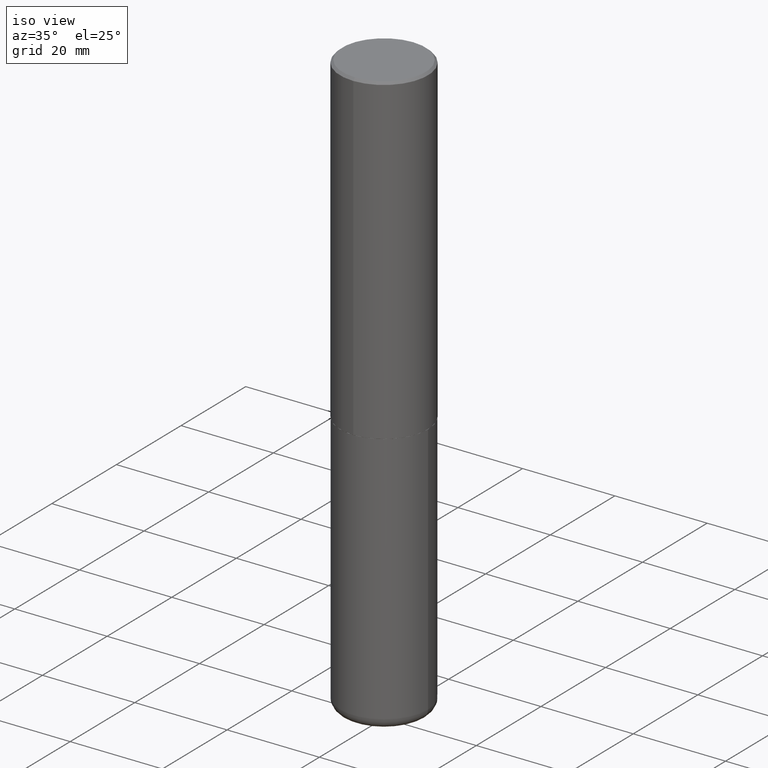
[diagram: clean part render]
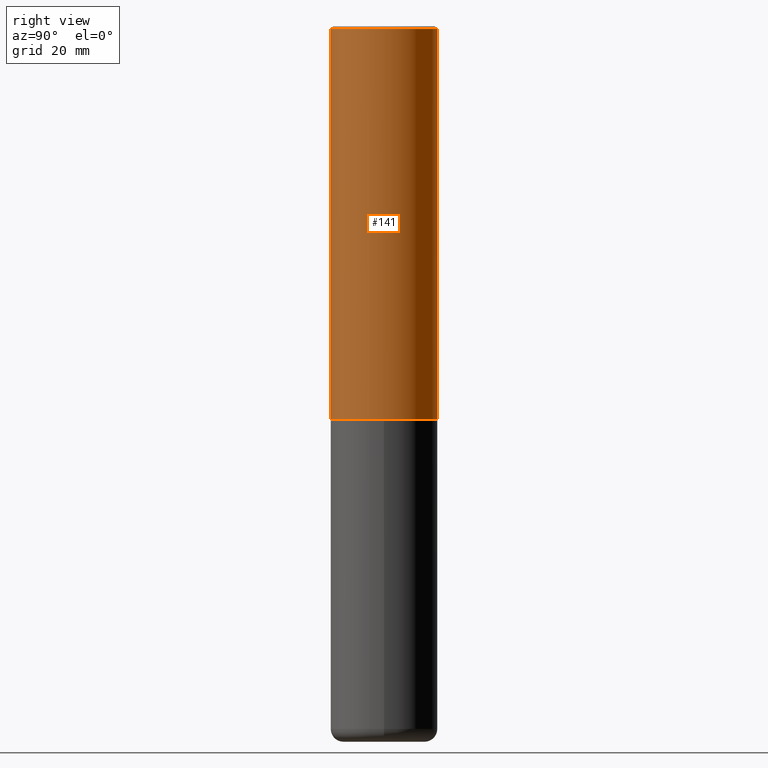
[diagram: tour spotlight — one face highlighted and labeled with its STEP entity id]
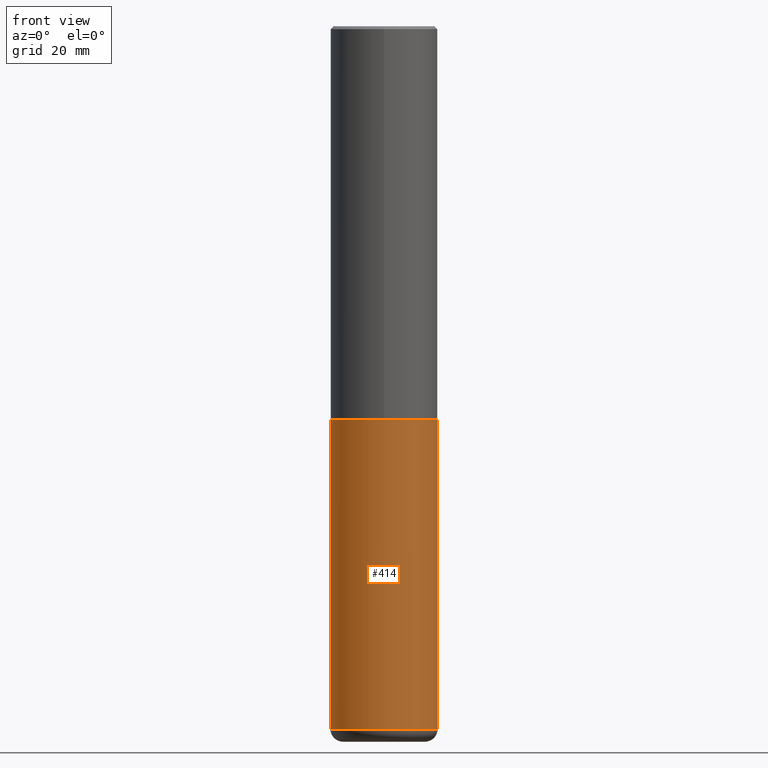
[diagram: tour spotlight — one face highlighted and labeled with its STEP entity id]
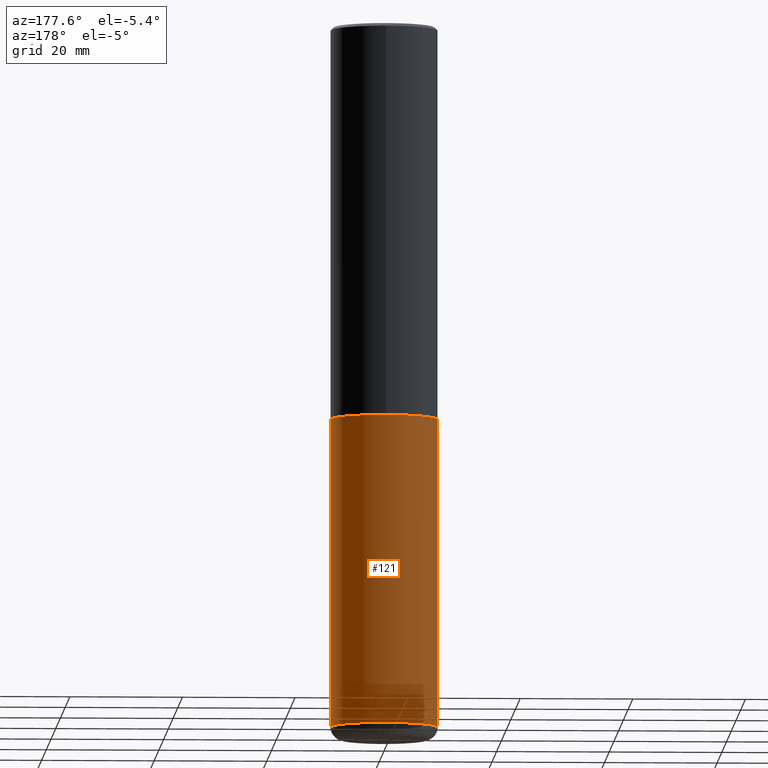
[diagram: tour spotlight — one face highlighted and labeled with its STEP entity id]
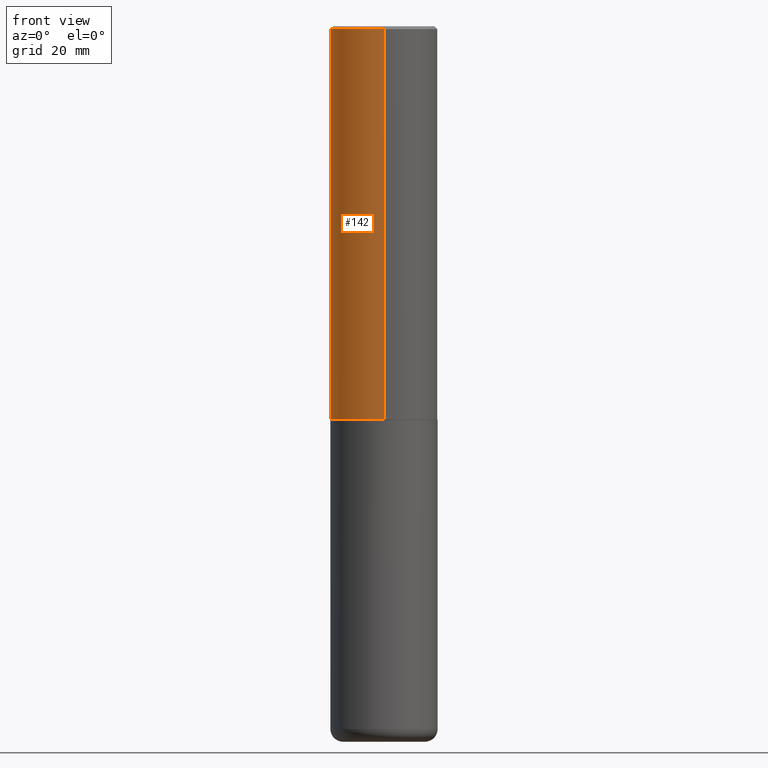
[diagram: tour spotlight — one face highlighted and labeled with its STEP entity id]
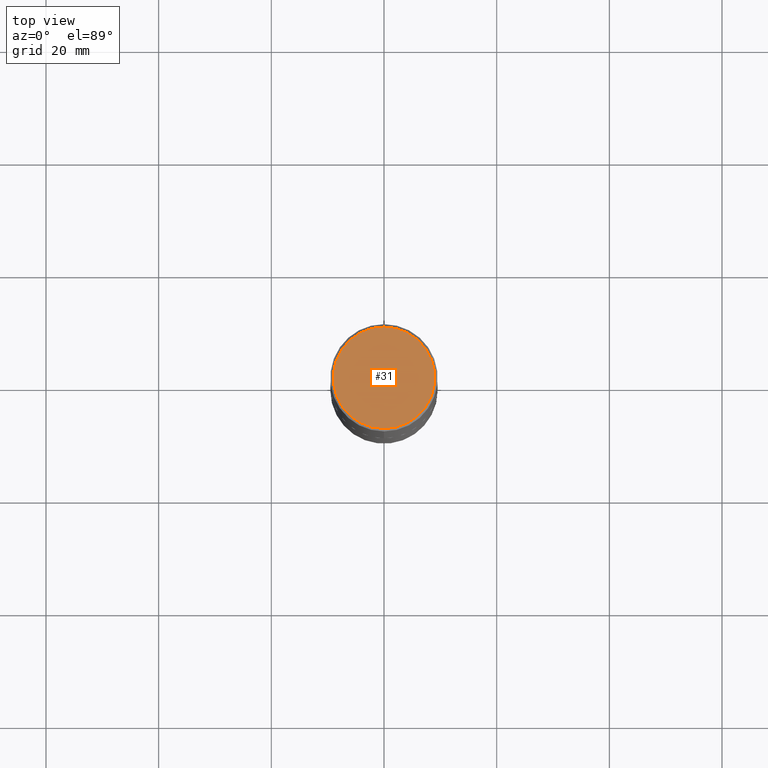
[diagram: tour spotlight — one face highlighted and labeled with its STEP entity id]
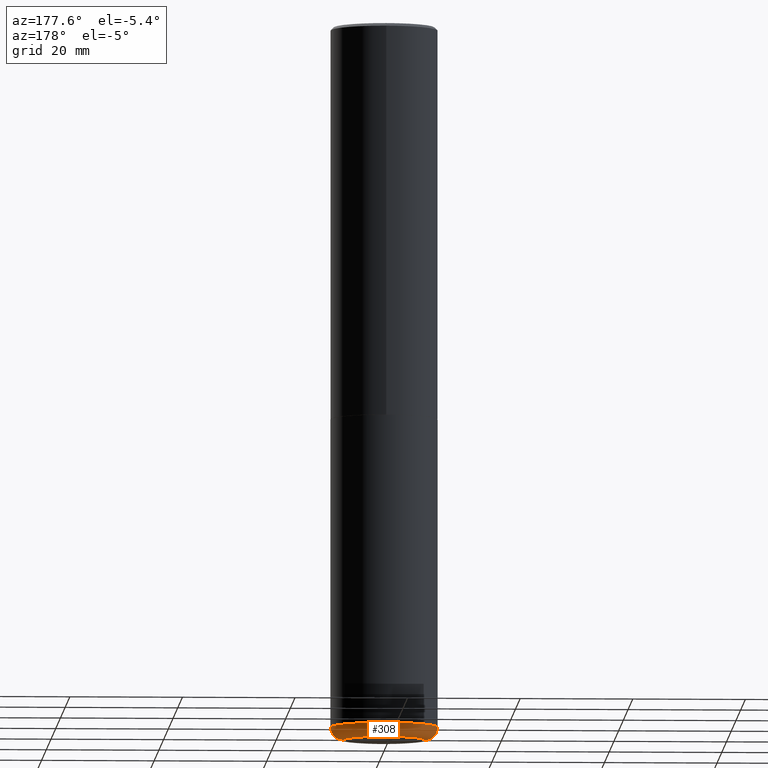
[diagram: tour spotlight — one face highlighted and labeled with its STEP entity id]
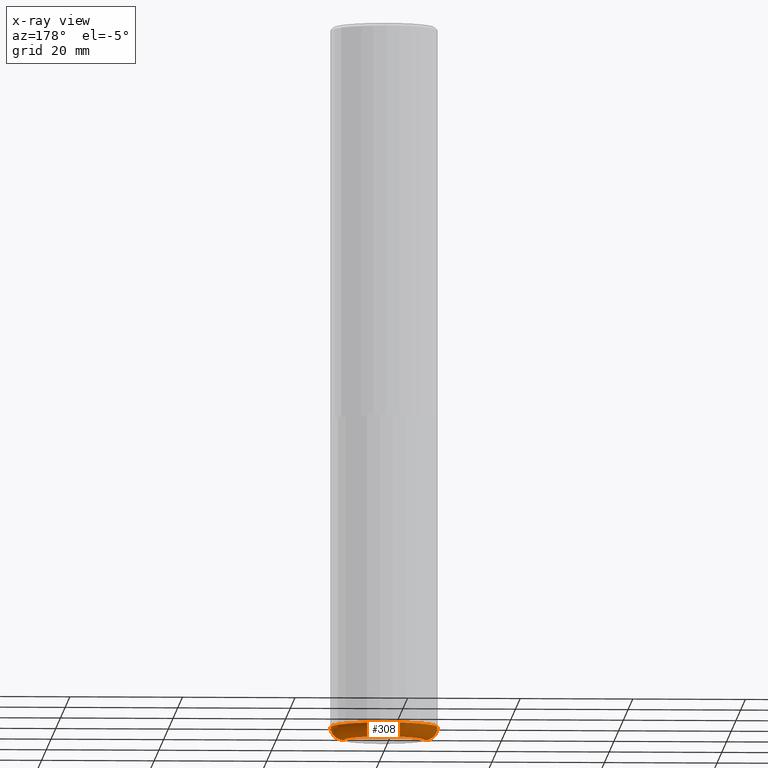
[diagram: x-ray of the same camera — body ghosted, this tour face saturated]
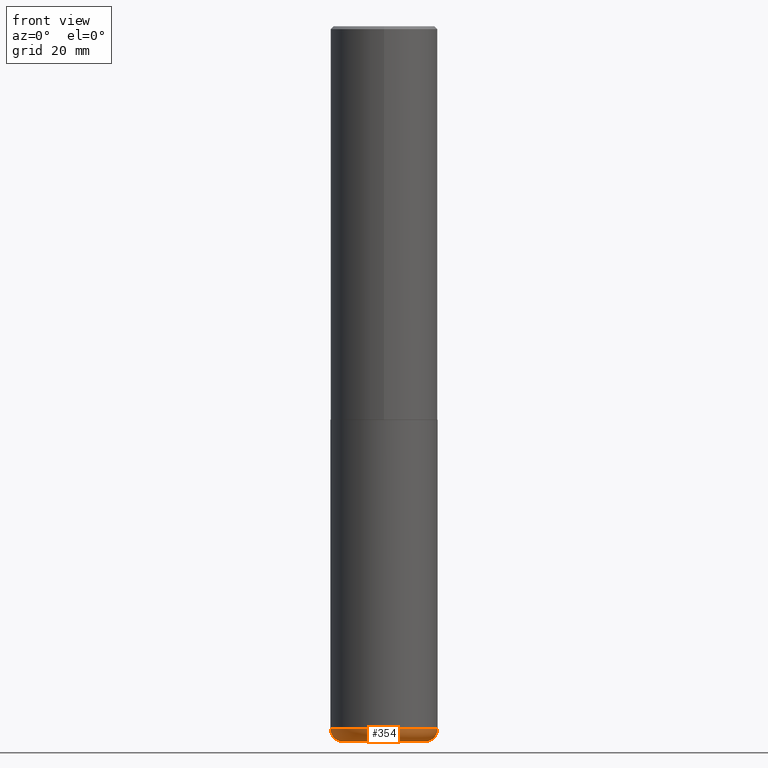
[diagram: tour spotlight — one face highlighted and labeled with its STEP entity id]
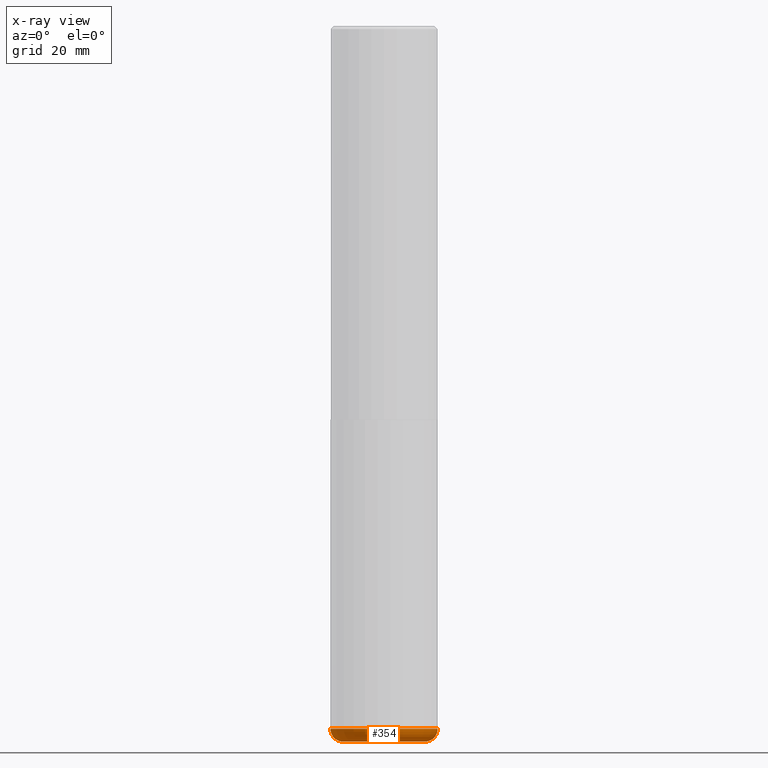
[diagram: x-ray of the same camera — body ghosted, this tour face saturated]
A machine part: a face-by-face anatomy tour. The part has 14 B-rep faces; the first image is the clean iso view, then the 7 largest visible faces are spotlighted one at a time (largest first), each with its STEP entity span.

Face 1 — right view, entity #141. In plain terms, the highlighted cylindrical surface (partial cylindrical patch) has radius 9.525 mm, axis along (-0, 0, 1).
Definition (entity closure, byte-faithful):
#2 = CARTESIAN_POINT ( 'NONE',  ( -2.618611004132351594E-15, -0.3750000000000002220, 1.308998548422625521E-15 ) ) ;
#57 = CARTESIAN_POINT ( 'NONE',  ( 0.000000000000000000, 0.000000000000000000, 0.000000000000000000 ) ) ;
#65 = DIRECTION ( 'NONE',  ( -6.982962677686265922E-15, -1.000000000000000000, 3.494488891895536035E-15 ) ) ;
#66 = AXIS2_PLACEMENT_3D ( 'NONE', #405, #412, #65 ) ;
#68 = CYLINDRICAL_SURFACE ( 'NONE', #416, 0.3750000000000002220 ) ;
#76 = EDGE_CURVE ( 'NONE', #403, #271, #93, .T. ) ;
#86 = EDGE_CURVE ( 'NONE', #214, #271, #312, .T. ) ;
#89 = CARTESIAN_POINT ( 'NONE',  ( 2.664535259100376880E-15, 0.3750000000000002220, -1.308998548422625521E-15 ) ) ;
#93 = CIRCLE ( 'NONE', #66, 0.3750000000000000555 ) ;
#141 = ADVANCED_FACE ( 'NONE', ( #352 ), #68, .T. ) ;
#148 = DIRECTION ( 'NONE',  ( -2.446040391741596606E-29, 3.490662795793665557E-15, 1.000000000000000000 ) ) ;
#150 = ORIENTED_EDGE ( 'NONE', *, *, #310, .F. ) ;
#176 = LINE ( 'NONE', #2, #387 ) ;
#180 = VERTEX_POINT ( 'NONE', #384 ) ;
#192 = DIRECTION ( 'NONE',  ( -2.446040391741596606E-29, 3.490662795793665557E-15, 1.000000000000000000 ) ) ;
#202 = DIRECTION ( 'NONE',  ( -6.982962677686265922E-15, -1.000000000000000000, 2.913971193241877611E-15 ) ) ;
#203 = DIRECTION ( 'NONE',  ( -2.446040391741596606E-29, 3.490662795793665557E-15, 1.000000000000000000 ) ) ;
#214 = VERTEX_POINT ( 'NONE', #292 ) ;
#236 = EDGE_CURVE ( 'NONE', #180, #214, #393, .T. ) ;
#244 = ORIENTED_EDGE ( 'NONE', *, *, #86, .T. ) ;
#259 = CARTESIAN_POINT ( 'NONE',  ( 6.724165036897648492E-29, -9.595832025636787455E-15, -2.749000000000000110 ) ) ;
#271 = VERTEX_POINT ( 'NONE', #385 ) ;
#292 = CARTESIAN_POINT ( 'NONE',  ( 2.664535259100411196E-15, 0.3749999999999907296, -2.749000000000000998 ) ) ;
#294 = AXIS2_PLACEMENT_3D ( 'NONE', #259, #203, #202 ) ;
#309 = DIRECTION ( 'NONE',  ( -6.982962677686266711E-15, -1.000000000000000000, 3.490662795793665951E-15 ) ) ;
#310 = EDGE_CURVE ( 'NONE', #180, #403, #176, .T. ) ;
#312 = LINE ( 'NONE', #89, #317 ) ;
#317 = VECTOR ( 'NONE', #343, 39.37007874015748143 ) ;
#334 = EDGE_LOOP ( 'NONE', ( #391, #244, #336, #150 ) ) ;
#336 = ORIENTED_EDGE ( 'NONE', *, *, #76, .F. ) ;
#343 = DIRECTION ( 'NONE',  ( -2.446040391741596606E-29, 3.490662795793665557E-15, 1.000000000000000000 ) ) ;
#352 = FACE_OUTER_BOUND ( 'NONE', #334, .T. ) ;
#384 = CARTESIAN_POINT ( 'NONE',  ( -2.618611004132284935E-15, -0.3750000000000099920, -2.748999999999999222 ) ) ;
#385 = CARTESIAN_POINT ( 'NONE',  ( 2.618611004132350411E-15, 0.3749999999999999445, -0.02000000000000139513 ) ) ;
#387 = VECTOR ( 'NONE', #148, 39.37007874015748143 ) ;
#389 = CARTESIAN_POINT ( 'NONE',  ( -2.572686749164323547E-15, -0.3750000000000001110, -0.01999999999999877570 ) ) ;
#391 = ORIENTED_EDGE ( 'NONE', *, *, #236, .T. ) ;
#393 = CIRCLE ( 'NONE', #294, 0.3750000000000003886 ) ;
#403 = VERTEX_POINT ( 'NONE', #389 ) ;
#405 = CARTESIAN_POINT ( 'NONE',  ( 4.892080783483214581E-31, -6.981325591587361238E-17, -0.02000000000000008715 ) ) ;
#412 = DIRECTION ( 'NONE',  ( -2.446040391741596606E-29, 3.490662795793665557E-15, 1.000000000000000000 ) ) ;
#416 = AXIS2_PLACEMENT_3D ( 'NONE', #57, #192, #309 ) ;

Face 2 — front view, entity #414. In plain terms, the highlighted cylindrical surface (partial cylindrical patch) has radius 9.525 mm, axis along (-0, 0, 1).
Definition (entity closure, byte-faithful):
#9 = CARTESIAN_POINT ( 'NONE',  ( 0.000000000000000000, 0.000000000000000000, 0.000000000000000000 ) ) ;
#17 = VERTEX_POINT ( 'NONE', #281 ) ;
#19 = AXIS2_PLACEMENT_3D ( 'NONE', #9, #208, #390 ) ;
#20 = ORIENTED_EDGE ( 'NONE', *, *, #327, .F. ) ;
#34 = CIRCLE ( 'NONE', #35, 0.3750000000000000555 ) ;
#35 = AXIS2_PLACEMENT_3D ( 'NONE', #135, #377, #129 ) ;
#52 = CIRCLE ( 'NONE', #351, 0.3749999999999999445 ) ;
#60 = EDGE_CURVE ( 'NONE', #84, #17, #193, .T. ) ;
#62 = EDGE_CURVE ( 'NONE', #368, #17, #34, .T. ) ;
#82 = EDGE_LOOP ( 'NONE', ( #20, #163, #340, #158 ) ) ;
#84 = VERTEX_POINT ( 'NONE', #170 ) ;
#103 = DIRECTION ( 'NONE',  ( -2.445468806185136597E-29, 3.491481338843145583E-15, 1.000000000000000000 ) ) ;
#110 = CARTESIAN_POINT ( 'NONE',  ( -0.3749999999999999445, 2.664535259100375303E-15, -1.844600658845589318E-29 ) ) ;
#129 = DIRECTION ( 'NONE',  ( 1.000000000000000000, -6.982962677686266711E-15, 0.000000000000000000 ) ) ;
#135 = CARTESIAN_POINT ( 'NONE',  ( 6.725039217009124520E-29, -9.601573681818649859E-15, -2.750000000000000000 ) ) ;
#151 = LINE ( 'NONE', #110, #160 ) ;
#158 = ORIENTED_EDGE ( 'NONE', *, *, #62, .F. ) ;
#160 = VECTOR ( 'NONE', #361, 39.37007874015748143 ) ;
#163 = ORIENTED_EDGE ( 'NONE', *, *, #279, .T. ) ;
#170 = CARTESIAN_POINT ( 'NONE',  ( 0.3749999999999999445, -1.976178437785219664E-14, -4.910000000000000142 ) ) ;
#193 = LINE ( 'NONE', #199, #392 ) ;
#199 = CARTESIAN_POINT ( 'NONE',  ( 0.3749999999999999445, -2.618611004132349622E-15, 1.828566290923475642E-29 ) ) ;
#208 = DIRECTION ( 'NONE',  ( -2.445468806185136597E-29, 3.491481338843145583E-15, 1.000000000000000000 ) ) ;
#210 = CARTESIAN_POINT ( 'NONE',  ( -0.3750000000000000555, -1.070783826866887333E-14, -2.750000000000000000 ) ) ;
#226 = DIRECTION ( 'NONE',  ( -2.445468806185136877E-29, 3.491481338843145188E-15, 1.000000000000000000 ) ) ;
#257 = DIRECTION ( 'NONE',  ( 1.000000000000000000, -6.982962677686269077E-15, 0.000000000000000000 ) ) ;
#279 = EDGE_CURVE ( 'NONE', #301, #84, #52, .T. ) ;
#281 = CARTESIAN_POINT ( 'NONE',  ( 0.3750000000000000555, -1.222018468595100145E-14, -2.750000000000000000 ) ) ;
#290 = CARTESIAN_POINT ( 'NONE',  ( -0.3749999999999999445, -1.447863811461947092E-14, -4.910000000000000142 ) ) ;
#301 = VERTEX_POINT ( 'NONE', #290 ) ;
#327 = EDGE_CURVE ( 'NONE', #301, #368, #151, .T. ) ;
#331 = FACE_OUTER_BOUND ( 'NONE', #82, .T. ) ;
#333 = CYLINDRICAL_SURFACE ( 'NONE', #19, 0.3749999999999999445 ) ;
#340 = ORIENTED_EDGE ( 'NONE', *, *, #60, .T. ) ;
#351 = AXIS2_PLACEMENT_3D ( 'NONE', #417, #103, #257 ) ;
#361 = DIRECTION ( 'NONE',  ( -2.445468806185136877E-29, 3.491481338843145188E-15, 1.000000000000000000 ) ) ;
#368 = VERTEX_POINT ( 'NONE', #210 ) ;
#377 = DIRECTION ( 'NONE',  ( -2.445468806185136597E-29, 3.491481338843145583E-15, 1.000000000000000000 ) ) ;
#390 = DIRECTION ( 'NONE',  ( 1.000000000000000000, -6.982962677686266711E-15, 4.876176775795935793E-29 ) ) ;
#392 = VECTOR ( 'NONE', #226, 39.37007874015748143 ) ;
#414 = ADVANCED_FACE ( 'NONE', ( #331 ), #333, .T. ) ;
#417 = CARTESIAN_POINT ( 'NONE',  ( 1.200725183836902132E-28, -1.714317337371984662E-14, -4.910000000000000142 ) ) ;

Face 3 — auxiliary view, entity #121. In plain terms, the highlighted cylindrical surface (partial cylindrical patch) has radius 9.525 mm, axis along (-0, 0, 1).
Definition (entity closure, byte-faithful):
#17 = VERTEX_POINT ( 'NONE', #281 ) ;
#29 = CARTESIAN_POINT ( 'NONE',  ( 0.000000000000000000, 0.000000000000000000, 0.000000000000000000 ) ) ;
#32 = DIRECTION ( 'NONE',  ( -2.445468806185136597E-29, 3.491481338843145583E-15, 1.000000000000000000 ) ) ;
#44 = AXIS2_PLACEMENT_3D ( 'NONE', #29, #318, #375 ) ;
#60 = EDGE_CURVE ( 'NONE', #84, #17, #193, .T. ) ;
#64 = DIRECTION ( 'NONE',  ( -2.445468806185136597E-29, 3.491481338843145583E-15, 1.000000000000000000 ) ) ;
#72 = CIRCLE ( 'NONE', #408, 0.3749999999999999445 ) ;
#84 = VERTEX_POINT ( 'NONE', #170 ) ;
#97 = ORIENTED_EDGE ( 'NONE', *, *, #263, .T. ) ;
#110 = CARTESIAN_POINT ( 'NONE',  ( -0.3749999999999999445, 2.664535259100375303E-15, -1.844600658845589318E-29 ) ) ;
#121 = ADVANCED_FACE ( 'NONE', ( #131 ), #219, .T. ) ;
#131 = FACE_OUTER_BOUND ( 'NONE', #304, .T. ) ;
#139 = CIRCLE ( 'NONE', #329, 0.3750000000000000555 ) ;
#151 = LINE ( 'NONE', #110, #160 ) ;
#160 = VECTOR ( 'NONE', #361, 39.37007874015748143 ) ;
#161 = EDGE_CURVE ( 'NONE', #17, #368, #139, .T. ) ;
#170 = CARTESIAN_POINT ( 'NONE',  ( 0.3749999999999999445, -1.976178437785219664E-14, -4.910000000000000142 ) ) ;
#188 = ORIENTED_EDGE ( 'NONE', *, *, #60, .F. ) ;
#193 = LINE ( 'NONE', #199, #392 ) ;
#199 = CARTESIAN_POINT ( 'NONE',  ( 0.3749999999999999445, -2.618611004132349622E-15, 1.828566290923475642E-29 ) ) ;
#210 = CARTESIAN_POINT ( 'NONE',  ( -0.3750000000000000555, -1.070783826866887333E-14, -2.750000000000000000 ) ) ;
#219 = CYLINDRICAL_SURFACE ( 'NONE', #44, 0.3749999999999999445 ) ;
#226 = DIRECTION ( 'NONE',  ( -2.445468806185136877E-29, 3.491481338843145188E-15, 1.000000000000000000 ) ) ;
#246 = ORIENTED_EDGE ( 'NONE', *, *, #161, .F. ) ;
#263 = EDGE_CURVE ( 'NONE', #84, #301, #72, .T. ) ;
#281 = CARTESIAN_POINT ( 'NONE',  ( 0.3750000000000000555, -1.222018468595100145E-14, -2.750000000000000000 ) ) ;
#288 = DIRECTION ( 'NONE',  ( 1.000000000000000000, -6.982962677686269077E-15, 0.000000000000000000 ) ) ;
#290 = CARTESIAN_POINT ( 'NONE',  ( -0.3749999999999999445, -1.447863811461947092E-14, -4.910000000000000142 ) ) ;
#301 = VERTEX_POINT ( 'NONE', #290 ) ;
#304 = EDGE_LOOP ( 'NONE', ( #97, #400, #246, #188 ) ) ;
#314 = DIRECTION ( 'NONE',  ( 1.000000000000000000, -6.982962677686266711E-15, 0.000000000000000000 ) ) ;
#318 = DIRECTION ( 'NONE',  ( -2.445468806185136597E-29, 3.491481338843145583E-15, 1.000000000000000000 ) ) ;
#320 = CARTESIAN_POINT ( 'NONE',  ( 1.200725183836902132E-28, -1.714317337371984662E-14, -4.910000000000000142 ) ) ;
#327 = EDGE_CURVE ( 'NONE', #301, #368, #151, .T. ) ;
#329 = AXIS2_PLACEMENT_3D ( 'NONE', #347, #64, #314 ) ;
#347 = CARTESIAN_POINT ( 'NONE',  ( 6.725039217009124520E-29, -9.601573681818649859E-15, -2.750000000000000000 ) ) ;
#361 = DIRECTION ( 'NONE',  ( -2.445468806185136877E-29, 3.491481338843145188E-15, 1.000000000000000000 ) ) ;
#368 = VERTEX_POINT ( 'NONE', #210 ) ;
#375 = DIRECTION ( 'NONE',  ( 1.000000000000000000, -6.982962677686266711E-15, 4.876176775795935793E-29 ) ) ;
#392 = VECTOR ( 'NONE', #226, 39.37007874015748143 ) ;
#400 = ORIENTED_EDGE ( 'NONE', *, *, #327, .T. ) ;
#408 = AXIS2_PLACEMENT_3D ( 'NONE', #320, #32, #288 ) ;

Face 4 — front view, entity #142. In plain terms, the highlighted cylindrical surface (partial cylindrical patch) has radius 9.525 mm, axis along (-0, 0, 1).
Definition (entity closure, byte-faithful):
#2 = CARTESIAN_POINT ( 'NONE',  ( -2.618611004132351594E-15, -0.3750000000000002220, 1.308998548422625521E-15 ) ) ;
#8 = EDGE_CURVE ( 'NONE', #271, #403, #415, .T. ) ;
#15 = ORIENTED_EDGE ( 'NONE', *, *, #394, .T. ) ;
#26 = CARTESIAN_POINT ( 'NONE',  ( 4.892080783483214581E-31, -6.981325591587361238E-17, -0.02000000000000008715 ) ) ;
#28 = AXIS2_PLACEMENT_3D ( 'NONE', #249, #95, #223 ) ;
#49 = ORIENTED_EDGE ( 'NONE', *, *, #310, .T. ) ;
#55 = EDGE_LOOP ( 'NONE', ( #213, #15, #49, #119 ) ) ;
#58 = CIRCLE ( 'NONE', #330, 0.3750000000000003886 ) ;
#86 = EDGE_CURVE ( 'NONE', #214, #271, #312, .T. ) ;
#89 = CARTESIAN_POINT ( 'NONE',  ( 2.664535259100376880E-15, 0.3750000000000002220, -1.308998548422625521E-15 ) ) ;
#95 = DIRECTION ( 'NONE',  ( -2.446040391741596606E-29, 3.490662795793665557E-15, 1.000000000000000000 ) ) ;
#119 = ORIENTED_EDGE ( 'NONE', *, *, #8, .F. ) ;
#142 = ADVANCED_FACE ( 'NONE', ( #247 ), #283, .T. ) ;
#148 = DIRECTION ( 'NONE',  ( -2.446040391741596606E-29, 3.490662795793665557E-15, 1.000000000000000000 ) ) ;
#176 = LINE ( 'NONE', #2, #387 ) ;
#180 = VERTEX_POINT ( 'NONE', #384 ) ;
#189 = CARTESIAN_POINT ( 'NONE',  ( 6.724165036897648492E-29, -9.595832025636787455E-15, -2.749000000000000110 ) ) ;
#213 = ORIENTED_EDGE ( 'NONE', *, *, #86, .F. ) ;
#214 = VERTEX_POINT ( 'NONE', #292 ) ;
#223 = DIRECTION ( 'NONE',  ( -6.982962677686266711E-15, -1.000000000000000000, 3.490662795793665951E-15 ) ) ;
#247 = FACE_OUTER_BOUND ( 'NONE', #55, .T. ) ;
#249 = CARTESIAN_POINT ( 'NONE',  ( 0.000000000000000000, 0.000000000000000000, 0.000000000000000000 ) ) ;
#271 = VERTEX_POINT ( 'NONE', #385 ) ;
#283 = CYLINDRICAL_SURFACE ( 'NONE', #28, 0.3750000000000002220 ) ;
#292 = CARTESIAN_POINT ( 'NONE',  ( 2.664535259100411196E-15, 0.3749999999999907296, -2.749000000000000998 ) ) ;
#303 = DIRECTION ( 'NONE',  ( -6.982962677686265922E-15, -1.000000000000000000, 2.913971193241877611E-15 ) ) ;
#310 = EDGE_CURVE ( 'NONE', #180, #403, #176, .T. ) ;
#312 = LINE ( 'NONE', #89, #317 ) ;
#317 = VECTOR ( 'NONE', #343, 39.37007874015748143 ) ;
#330 = AXIS2_PLACEMENT_3D ( 'NONE', #189, #397, #303 ) ;
#343 = DIRECTION ( 'NONE',  ( -2.446040391741596606E-29, 3.490662795793665557E-15, 1.000000000000000000 ) ) ;
#348 = DIRECTION ( 'NONE',  ( -2.446040391741596606E-29, 3.490662795793665557E-15, 1.000000000000000000 ) ) ;
#384 = CARTESIAN_POINT ( 'NONE',  ( -2.618611004132284935E-15, -0.3750000000000099920, -2.748999999999999222 ) ) ;
#385 = CARTESIAN_POINT ( 'NONE',  ( 2.618611004132350411E-15, 0.3749999999999999445, -0.02000000000000139513 ) ) ;
#387 = VECTOR ( 'NONE', #148, 39.37007874015748143 ) ;
#389 = CARTESIAN_POINT ( 'NONE',  ( -2.572686749164323547E-15, -0.3750000000000001110, -0.01999999999999877570 ) ) ;
#394 = EDGE_CURVE ( 'NONE', #214, #180, #58, .T. ) ;
#397 = DIRECTION ( 'NONE',  ( -2.446040391741596606E-29, 3.490662795793665557E-15, 1.000000000000000000 ) ) ;
#403 = VERTEX_POINT ( 'NONE', #389 ) ;
#406 = AXIS2_PLACEMENT_3D ( 'NONE', #26, #348, #413 ) ;
#413 = DIRECTION ( 'NONE',  ( -6.982962677686265922E-15, -1.000000000000000000, 3.494488891895536035E-15 ) ) ;
#415 = CIRCLE ( 'NONE', #406, 0.3750000000000000555 ) ;

Face 5 — top view, entity #31. In plain terms, the highlighted planar face has unit normal (0, -0, -1).
Definition (entity closure, byte-faithful):
#13 = DIRECTION ( 'NONE',  ( -6.982962677686265922E-15, -1.000000000000000000, 3.490662795793665557E-15 ) ) ;
#31 = ADVANCED_FACE ( 'NONE', ( #278 ), #195, .F. ) ;
#33 = VERTEX_POINT ( 'NONE', #286 ) ;
#50 = CARTESIAN_POINT ( 'NONE',  ( -1.141397163745304909E-45, 1.628849886601155835E-31, 4.666305460853910467E-17 ) ) ;
#61 = DIRECTION ( 'NONE',  ( 6.982962677686265922E-15, 1.000000000000000000, -3.490662795793665557E-15 ) ) ;
#79 = ORIENTED_EDGE ( 'NONE', *, *, #291, .T. ) ;
#113 = AXIS2_PLACEMENT_3D ( 'NONE', #138, #253, #61 ) ;
#138 = CARTESIAN_POINT ( 'NONE',  ( 2.478951750578624209E-15, 0.3549999999999999822, -1.215853765202481601E-15 ) ) ;
#140 = DIRECTION ( 'NONE',  ( -2.446040391741596606E-29, 3.490662795793665557E-15, 1.000000000000000000 ) ) ;
#156 = ORIENTED_EDGE ( 'NONE', *, *, #337, .T. ) ;
#165 = AXIS2_PLACEMENT_3D ( 'NONE', #233, #140, #293 ) ;
#195 = PLANE ( 'NONE',  #113 ) ;
#207 = AXIS2_PLACEMENT_3D ( 'NONE', #50, #240, #13 ) ;
#209 = EDGE_LOOP ( 'NONE', ( #79, #156 ) ) ;
#229 = CIRCLE ( 'NONE', #165, 0.3549999999999999822 ) ;
#233 = CARTESIAN_POINT ( 'NONE',  ( -1.141397163745304909E-45, 1.628849886601155835E-31, 4.666305460853910467E-17 ) ) ;
#240 = DIRECTION ( 'NONE',  ( -2.446040391741596606E-29, 3.490662795793665557E-15, 1.000000000000000000 ) ) ;
#241 = VERTEX_POINT ( 'NONE', #325 ) ;
#253 = DIRECTION ( 'NONE',  ( 2.446040391741596045E-29, -3.490662795793665557E-15, -1.000000000000000000 ) ) ;
#278 = FACE_OUTER_BOUND ( 'NONE', #209, .T. ) ;
#286 = CARTESIAN_POINT ( 'NONE',  ( -2.504081769186608216E-15, -0.3549999999999999822, 1.285848347115290366E-15 ) ) ;
#291 = EDGE_CURVE ( 'NONE', #241, #33, #229, .T. ) ;
#293 = DIRECTION ( 'NONE',  ( -6.982962677686265922E-15, -1.000000000000000000, 3.490662795793665557E-15 ) ) ;
#325 = CARTESIAN_POINT ( 'NONE',  ( 2.548781377355487113E-15, 0.3549999999999999822, -1.192522237898212341E-15 ) ) ;
#337 = EDGE_CURVE ( 'NONE', #33, #241, #381, .T. ) ;
#381 = CIRCLE ( 'NONE', #207, 0.3549999999999999822 ) ;

Face 6 — auxiliary view, entity #308. An x-ray twin of the same camera follows (body ghosted, this face saturated) — the face is partly hidden behind the body. In plain terms, the highlighted toroidal blend (fillet) surface has major radius 7.239 mm and minor (blend) radius 2.286 mm.
Definition (entity closure, byte-faithful):
#10 = ORIENTED_EDGE ( 'NONE', *, *, #90, .T. ) ;
#14 = ORIENTED_EDGE ( 'NONE', *, *, #201, .T. ) ;
#22 = CARTESIAN_POINT ( 'NONE',  ( 1.222734403092568523E-28, -1.745740669421572989E-14, -5.000000000000000000 ) ) ;
#27 = AXIS2_PLACEMENT_3D ( 'NONE', #235, #206, #237 ) ;
#32 = DIRECTION ( 'NONE',  ( -2.445468806185136597E-29, 3.491481338843145583E-15, 1.000000000000000000 ) ) ;
#39 = ORIENTED_EDGE ( 'NONE', *, *, #263, .F. ) ;
#42 = CARTESIAN_POINT ( 'NONE',  ( -0.2850000000000000311, -1.495549900595945556E-14, -5.000000000000000000 ) ) ;
#54 = CARTESIAN_POINT ( 'NONE',  ( 0.2850000000000000311, -1.913331773686043011E-14, -4.910000000000000142 ) ) ;
#72 = CIRCLE ( 'NONE', #408, 0.3749999999999999445 ) ;
#74 = DIRECTION ( 'NONE',  ( 1.000000000000000000, -6.982962677686269077E-15, 4.883557194083113462E-29 ) ) ;
#78 = CIRCLE ( 'NONE', #307, 0.08999999999999992728 ) ;
#80 = DIRECTION ( 'NONE',  ( 1.000000000000000000, -6.982962677686273810E-15, 0.000000000000000000 ) ) ;
#84 = VERTEX_POINT ( 'NONE', #170 ) ;
#90 = EDGE_CURVE ( 'NONE', #186, #218, #147, .T. ) ;
#99 = AXIS2_PLACEMENT_3D ( 'NONE', #22, #197, #228 ) ;
#145 = CARTESIAN_POINT ( 'NONE',  ( 1.200725183836902132E-28, -1.714317337371984662E-14, -4.910000000000000142 ) ) ;
#147 = CIRCLE ( 'NONE', #99, 0.2850000000000000311 ) ;
#170 = CARTESIAN_POINT ( 'NONE',  ( 0.3749999999999999445, -1.976178437785219664E-14, -4.910000000000000142 ) ) ;
#177 = TOROIDAL_SURFACE ( 'NONE', #284, 0.2850000000000000311, 0.08999999999999989952 ) ;
#186 = VERTEX_POINT ( 'NONE', #355 ) ;
#197 = DIRECTION ( 'NONE',  ( -2.445468806185136597E-29, 3.491481338843145583E-15, 1.000000000000000000 ) ) ;
#201 = EDGE_CURVE ( 'NONE', #218, #301, #300, .T. ) ;
#206 = DIRECTION ( 'NONE',  ( 7.105427357601001859E-15, 1.000000000000000000, -3.491481338843145583E-15 ) ) ;
#218 = VERTEX_POINT ( 'NONE', #42 ) ;
#228 = DIRECTION ( 'NONE',  ( 1.000000000000000000, -6.982962677686266711E-15, 0.000000000000000000 ) ) ;
#235 = CARTESIAN_POINT ( 'NONE',  ( -0.2850000000000000311, -1.511812657680356008E-14, -4.910000000000000142 ) ) ;
#237 = DIRECTION ( 'NONE',  ( -1.000000000000000000, 7.105427357600996337E-15, 0.000000000000000000 ) ) ;
#258 = FACE_OUTER_BOUND ( 'NONE', #342, .T. ) ;
#263 = EDGE_CURVE ( 'NONE', #84, #301, #72, .T. ) ;
#270 = DIRECTION ( 'NONE',  ( -6.982962677686266711E-15, -1.000000000000000000, 3.491481338843145583E-15 ) ) ;
#284 = AXIS2_PLACEMENT_3D ( 'NONE', #145, #386, #74 ) ;
#288 = DIRECTION ( 'NONE',  ( 1.000000000000000000, -6.982962677686269077E-15, 0.000000000000000000 ) ) ;
#290 = CARTESIAN_POINT ( 'NONE',  ( -0.3749999999999999445, -1.447863811461947092E-14, -4.910000000000000142 ) ) ;
#299 = ORIENTED_EDGE ( 'NONE', *, *, #356, .F. ) ;
#300 = CIRCLE ( 'NONE', #27, 0.08999999999999992728 ) ;
#301 = VERTEX_POINT ( 'NONE', #290 ) ;
#307 = AXIS2_PLACEMENT_3D ( 'NONE', #54, #270, #80 ) ;
#308 = ADVANCED_FACE ( 'NONE', ( #258 ), #177, .T. ) ;
#320 = CARTESIAN_POINT ( 'NONE',  ( 1.200725183836902132E-28, -1.714317337371984662E-14, -4.910000000000000142 ) ) ;
#342 = EDGE_LOOP ( 'NONE', ( #10, #14, #39, #299 ) ) ;
#355 = CARTESIAN_POINT ( 'NONE',  ( 0.2850000000000000311, -1.944755105735631653E-14, -5.000000000000000000 ) ) ;
#356 = EDGE_CURVE ( 'NONE', #186, #84, #78, .T. ) ;
#386 = DIRECTION ( 'NONE',  ( -2.445468806185136597E-29, 3.491481338843145583E-15, 1.000000000000000000 ) ) ;
#408 = AXIS2_PLACEMENT_3D ( 'NONE', #320, #32, #288 ) ;

Face 7 — front view, entity #354. An x-ray twin of the same camera follows (body ghosted, this face saturated) — the face is partly hidden behind the body. In plain terms, the highlighted toroidal blend (fillet) surface has major radius 7.239 mm and minor (blend) radius 2.286 mm.
Definition (entity closure, byte-faithful):
#18 = TOROIDAL_SURFACE ( 'NONE', #256, 0.2850000000000000311, 0.08999999999999989952 ) ;
#27 = AXIS2_PLACEMENT_3D ( 'NONE', #235, #206, #237 ) ;
#42 = CARTESIAN_POINT ( 'NONE',  ( -0.2850000000000000311, -1.495549900595945556E-14, -5.000000000000000000 ) ) ;
#52 = CIRCLE ( 'NONE', #351, 0.3749999999999999445 ) ;
#54 = CARTESIAN_POINT ( 'NONE',  ( 0.2850000000000000311, -1.913331773686043011E-14, -4.910000000000000142 ) ) ;
#78 = CIRCLE ( 'NONE', #307, 0.08999999999999992728 ) ;
#80 = DIRECTION ( 'NONE',  ( 1.000000000000000000, -6.982962677686273810E-15, 0.000000000000000000 ) ) ;
#84 = VERTEX_POINT ( 'NONE', #170 ) ;
#103 = DIRECTION ( 'NONE',  ( -2.445468806185136597E-29, 3.491481338843145583E-15, 1.000000000000000000 ) ) ;
#105 = CIRCLE ( 'NONE', #366, 0.2850000000000000311 ) ;
#122 = ORIENTED_EDGE ( 'NONE', *, *, #172, .T. ) ;
#155 = DIRECTION ( 'NONE',  ( -2.445468806185136597E-29, 3.491481338843145583E-15, 1.000000000000000000 ) ) ;
#157 = CARTESIAN_POINT ( 'NONE',  ( 1.200725183836902132E-28, -1.714317337371984662E-14, -4.910000000000000142 ) ) ;
#170 = CARTESIAN_POINT ( 'NONE',  ( 0.3749999999999999445, -1.976178437785219664E-14, -4.910000000000000142 ) ) ;
#172 = EDGE_CURVE ( 'NONE', #218, #186, #105, .T. ) ;
#186 = VERTEX_POINT ( 'NONE', #355 ) ;
#201 = EDGE_CURVE ( 'NONE', #218, #301, #300, .T. ) ;
#206 = DIRECTION ( 'NONE',  ( 7.105427357601001859E-15, 1.000000000000000000, -3.491481338843145583E-15 ) ) ;
#218 = VERTEX_POINT ( 'NONE', #42 ) ;
#232 = CARTESIAN_POINT ( 'NONE',  ( 1.222734403092568523E-28, -1.745740669421572989E-14, -5.000000000000000000 ) ) ;
#235 = CARTESIAN_POINT ( 'NONE',  ( -0.2850000000000000311, -1.511812657680356008E-14, -4.910000000000000142 ) ) ;
#237 = DIRECTION ( 'NONE',  ( -1.000000000000000000, 7.105427357600996337E-15, 0.000000000000000000 ) ) ;
#242 = ORIENTED_EDGE ( 'NONE', *, *, #356, .T. ) ;
#256 = AXIS2_PLACEMENT_3D ( 'NONE', #157, #155, #266 ) ;
#257 = DIRECTION ( 'NONE',  ( 1.000000000000000000, -6.982962677686269077E-15, 0.000000000000000000 ) ) ;
#266 = DIRECTION ( 'NONE',  ( 1.000000000000000000, -6.982962677686269077E-15, 4.883557194083113462E-29 ) ) ;
#268 = FACE_OUTER_BOUND ( 'NONE', #332, .T. ) ;
#270 = DIRECTION ( 'NONE',  ( -6.982962677686266711E-15, -1.000000000000000000, 3.491481338843145583E-15 ) ) ;
#279 = EDGE_CURVE ( 'NONE', #301, #84, #52, .T. ) ;
#290 = CARTESIAN_POINT ( 'NONE',  ( -0.3749999999999999445, -1.447863811461947092E-14, -4.910000000000000142 ) ) ;
#300 = CIRCLE ( 'NONE', #27, 0.08999999999999992728 ) ;
#301 = VERTEX_POINT ( 'NONE', #290 ) ;
#307 = AXIS2_PLACEMENT_3D ( 'NONE', #54, #270, #80 ) ;
#321 = ORIENTED_EDGE ( 'NONE', *, *, #279, .F. ) ;
#332 = EDGE_LOOP ( 'NONE', ( #345, #122, #242, #321 ) ) ;
#345 = ORIENTED_EDGE ( 'NONE', *, *, #201, .F. ) ;
#351 = AXIS2_PLACEMENT_3D ( 'NONE', #417, #103, #257 ) ;
#353 = DIRECTION ( 'NONE',  ( 1.000000000000000000, -6.982962677686266711E-15, 0.000000000000000000 ) ) ;
#354 = ADVANCED_FACE ( 'NONE', ( #268 ), #18, .T. ) ;
#355 = CARTESIAN_POINT ( 'NONE',  ( 0.2850000000000000311, -1.944755105735631653E-14, -5.000000000000000000 ) ) ;
#356 = EDGE_CURVE ( 'NONE', #186, #84, #78, .T. ) ;
#360 = DIRECTION ( 'NONE',  ( -2.445468806185136597E-29, 3.491481338843145583E-15, 1.000000000000000000 ) ) ;
#366 = AXIS2_PLACEMENT_3D ( 'NONE', #232, #360, #353 ) ;
#417 = CARTESIAN_POINT ( 'NONE',  ( 1.200725183836902132E-28, -1.714317337371984662E-14, -4.910000000000000142 ) ) ;